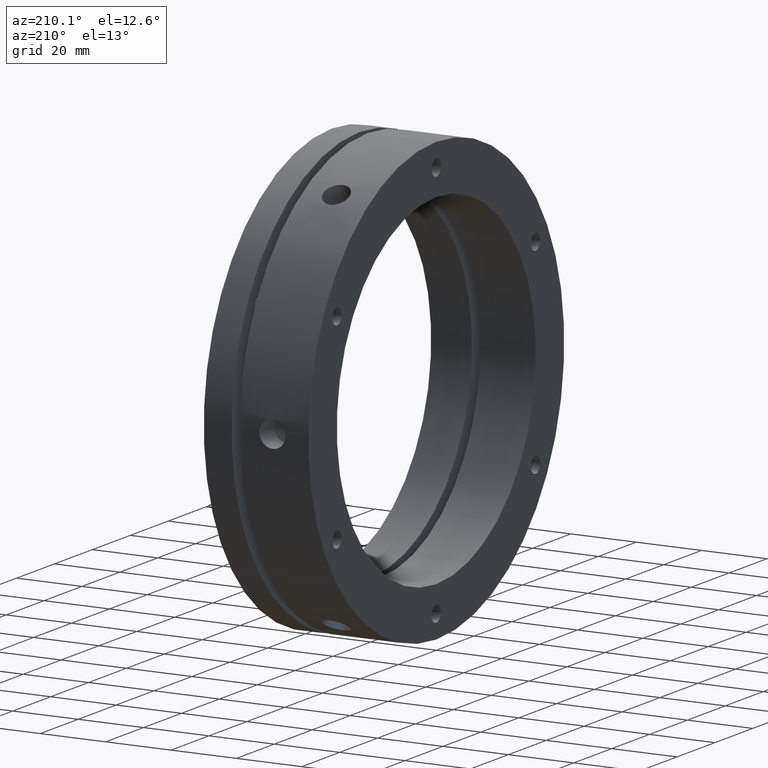
[diagram: clean part render]
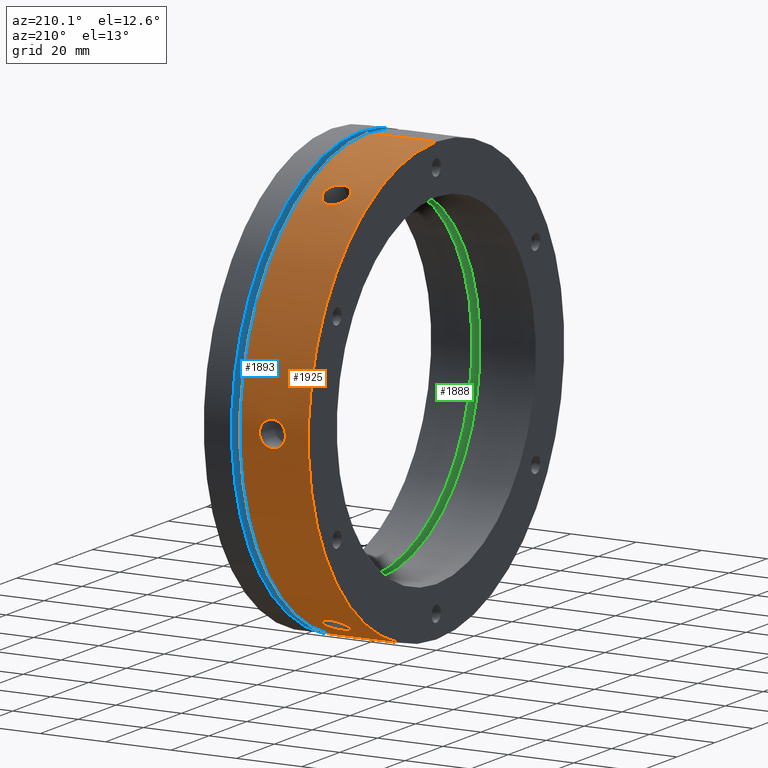
[diagram: same view with three faces highlighted in distinct colors, each labeled with its STEP entity id]
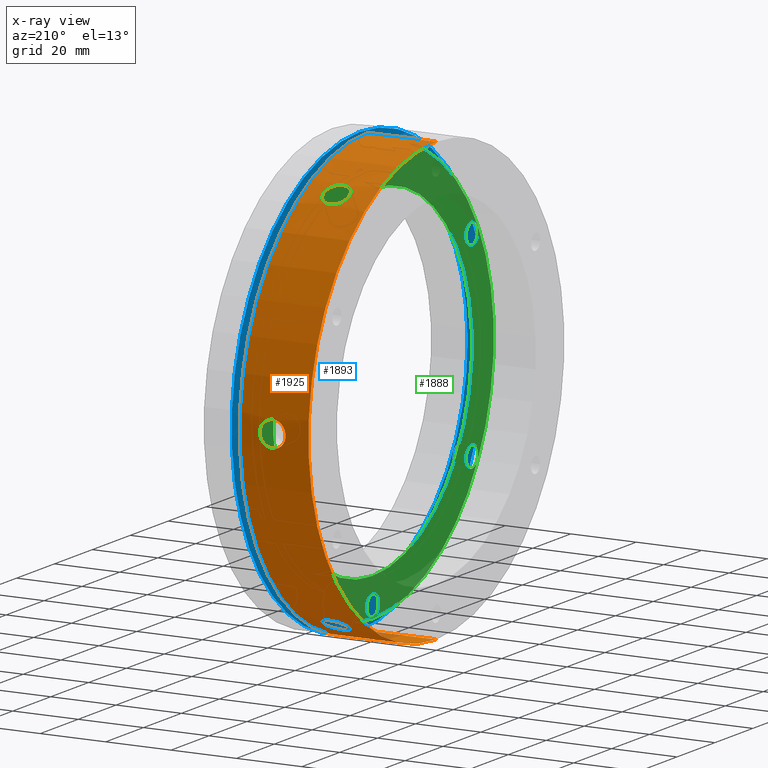
[diagram: x-ray of the same camera — body ghosted, the three highlighted faces saturated]
A machine part, auxiliary view with three faces highlighted in distinct colors.
The next image is the same camera in x-ray (body ghosted, the three faces saturated) — at least one of them is partly hidden behind the body in this view.
Their STEP definitions:

[orange] entity #1925 — the highlighted cylindrical surface (partial cylindrical patch) has radius 67.5 mm, axis along (1, 0, 0).
#71 = EDGE_LOOP ( 'NONE', ( #881, #877, #878, #907 ) ) ;
#146 = EDGE_LOOP ( 'NONE', ( #886, #890 ) ) ;
#170 = EDGE_LOOP ( 'NONE', ( #883, #882 ) ) ;
#171 = EDGE_LOOP ( 'NONE', ( #885, #884 ) ) ;
#394 = VECTOR ( 'NONE', #3730, 1000.000000000000000 ) ;
#398 = LINE ( 'NONE', #3724, #394 ) ;
#436 = CIRCLE ( 'NONE', #530, 67.50000000000000000 ) ;
#438 = CIRCLE ( 'NONE', #529, 67.50000000000000000 ) ;
#440 = VECTOR ( 'NONE', #3423, 1000.000000000000000 ) ;
#445 = LINE ( 'NONE', #3386, #440 ) ;
#529 = AXIS2_PLACEMENT_3D ( 'NONE', #3640, #3641, #3642 ) ;
#530 = AXIS2_PLACEMENT_3D ( 'NONE', #3636, #3637, #3638 ) ;
#598 = AXIS2_PLACEMENT_3D ( 'NONE', #3023, #3024, #3022 ) ;
#877 = ORIENTED_EDGE ( 'NONE', *, *, #4347, .T. ) ;
#878 = ORIENTED_EDGE ( 'NONE', *, *, #4282, .T. ) ;
#881 = ORIENTED_EDGE ( 'NONE', *, *, #4283, .T. ) ;
#882 = ORIENTED_EDGE ( 'NONE', *, *, #4280, .T. ) ;
#883 = ORIENTED_EDGE ( 'NONE', *, *, #4279, .T. ) ;
#884 = ORIENTED_EDGE ( 'NONE', *, *, #4277, .T. ) ;
#885 = ORIENTED_EDGE ( 'NONE', *, *, #4273, .T. ) ;
#886 = ORIENTED_EDGE ( 'NONE', *, *, #4274, .T. ) ;
#890 = ORIENTED_EDGE ( 'NONE', *, *, #4276, .T. ) ;
#907 = ORIENTED_EDGE ( 'NONE', *, *, #4272, .F. ) ;
#975 = CYLINDRICAL_SURFACE ( 'NONE', #598, 67.50000000000000000 ) ;
#979 = FACE_BOUND ( 'NONE', #171, .T. ) ;
#983 = FACE_BOUND ( 'NONE', #170, .T. ) ;
#985 = FACE_OUTER_BOUND ( 'NONE', #71, .T. ) ;
#987 = FACE_BOUND ( 'NONE', #146, .T. ) ;
#1925 = ADVANCED_FACE ( 'NONE', ( #987, #979, #983, #985 ), #975, .T. ) ;
#2111 = VERTEX_POINT ( 'NONE', #3281 ) ;
#2112 = VERTEX_POINT ( 'NONE', #3282 ) ;
#2113 = VERTEX_POINT ( 'NONE', #3283 ) ;
#2114 = VERTEX_POINT ( 'NONE', #3284 ) ;
#2117 = VERTEX_POINT ( 'NONE', #3287 ) ;
#2121 = VERTEX_POINT ( 'NONE', #3291 ) ;
#2122 = VERTEX_POINT ( 'NONE', #3292 ) ;
#2125 = VERTEX_POINT ( 'NONE', #3295 ) ;
#2126 = VERTEX_POINT ( 'NONE', #3296 ) ;
#2127 = VERTEX_POINT ( 'NONE', #3297 ) ;
#3022 = DIRECTION ( 'NONE',  ( 0.0000000000000000000, 0.0000000000000000000, -1.000000000000000000 ) ) ;
#3023 = CARTESIAN_POINT ( 'NONE',  ( 15.99999999999998200, 0.0000000000000000000, 0.0000000000000000000 ) ) ;
#3024 = DIRECTION ( 'NONE',  ( 1.000000000000000000, 0.0000000000000000000, 0.0000000000000000000 ) ) ;
#3281 = CARTESIAN_POINT ( 'NONE',  ( 10.99999999999998600, 67.38137724920737500, 3.999999999999966200 ) ) ;
#3282 = CARTESIAN_POINT ( 'NONE',  ( 10.99999999999998600, 30.22658700946598700, 60.35398443979637100 ) ) ;
#3283 = CARTESIAN_POINT ( 'NONE',  ( 10.99999999999998600, 30.22658700946592700, -60.35398443979640600 ) ) ;
#3284 = CARTESIAN_POINT ( 'NONE',  ( -1.734723475976807100E-014, 8.266365894244635100E-015, 67.50000000000000000 ) ) ;
#3287 = CARTESIAN_POINT ( 'NONE',  ( 10.99999999999998600, 37.15479023974149400, 56.35398443979637100 ) ) ;
#3291 = CARTESIAN_POINT ( 'NONE',  ( 20.99999999999998600, 8.266365894244635100E-015, 67.50000000000000000 ) ) ;
#3292 = CARTESIAN_POINT ( 'NONE',  ( -1.734723475976807100E-014, 0.0000000000000000000, -67.50000000000000000 ) ) ;
#3295 = CARTESIAN_POINT ( 'NONE',  ( 10.99999999999998600, 67.38137724920737500, -4.000000000000033800 ) ) ;
#3296 = CARTESIAN_POINT ( 'NONE',  ( 10.99999999999998600, 37.15479023974143800, -56.35398443979640600 ) ) ;
#3297 = CARTESIAN_POINT ( 'NONE',  ( 20.99999999999998600, 0.0000000000000000000, -67.50000000000000000 ) ) ;
#3386 = CARTESIAN_POINT ( 'NONE',  ( 15.99999999999998200, 0.0000000000000000000, -67.50000000000000000 ) ) ;
#3387 = CARTESIAN_POINT ( 'NONE',  ( 10.73909229457169400, 67.38137724920738900, 3.999999999999966200 ) ) ;
#3421 = CARTESIAN_POINT ( 'NONE',  ( 10.99999999999998600, 67.38137724920737500, 3.999999999999966200 ) ) ;
#3423 = DIRECTION ( 'NONE',  ( 1.000000000000000000, 0.0000000000000000000, 0.0000000000000000000 ) ) ;
#3424 = CARTESIAN_POINT ( 'NONE',  ( 10.99999999999998600, 30.22658700946598700, 60.35398443979637100 ) ) ;
#3425 = CARTESIAN_POINT ( 'NONE',  ( 10.73909229457169800, 30.22658700946598700, 60.35398443979635600 ) ) ;
#3426 = CARTESIAN_POINT ( 'NONE',  ( 10.47408763467156900, 67.38294160032730000, 3.973890608714768700 ) ) ;
#3427 = CARTESIAN_POINT ( 'NONE',  ( 9.961158909440492000, 67.38889690229801500, 3.871588766204637500 ) ) ;
#3428 = CARTESIAN_POINT ( 'NONE',  ( 9.711849904074711000, 67.39325442428891200, 3.795963450220702000 ) ) ;
#3429 = CARTESIAN_POINT ( 'NONE',  ( 9.227622722682753000, 67.40424862306866800, 3.595462136067257400 ) ) ;
#3430 = CARTESIAN_POINT ( 'NONE',  ( 8.993526050400470600, 67.41089719912022800, 3.470153257375494500 ) ) ;
#3431 = CARTESIAN_POINT ( 'NONE',  ( 8.560270715125977100, 67.42518374067218200, 3.180506619490580900 ) ) ;
#3432 = CARTESIAN_POINT ( 'NONE',  ( 8.358320997279003400, 67.43288274413102100, 3.015167897203681100 ) ) ;
#3433 = CARTESIAN_POINT ( 'NONE',  ( 7.984936087301689700, 67.44854199779236100, 2.641797684170584600 ) ) ;
#3434 = CARTESIAN_POINT ( 'NONE',  ( 7.819337065288731700, 67.45625031883604100, 2.439518780513361600 ) ) ;
#3435 = CARTESIAN_POINT ( 'NONE',  ( 7.529781849465389400, 67.47052322596526600, 2.006353551202695800 ) ) ;
#3436 = CARTESIAN_POINT ( 'NONE',  ( 7.404617164997526800, 67.47715718081893500, 1.772570174284353400 ) ) ;
#3437 = CARTESIAN_POINT ( 'NONE',  ( 7.203951095060021200, 67.48814674269408400, 1.287942337333826100 ) ) ;
#3438 = CARTESIAN_POINT ( 'NONE',  ( 7.128361585335436100, 67.49249573465600300, 1.038608952718347100 ) ) ;
#3439 = CARTESIAN_POINT ( 'NONE',  ( 7.026139370803330000, 67.49843675803855100, 0.5260458823084767100 ) ) ;
#3440 = CARTESIAN_POINT ( 'NONE',  ( 6.999817124770880000, 67.50001083704796700, 0.2614818767404899500 ) ) ;
#3441 = CARTESIAN_POINT ( 'NONE',  ( 7.000184811102107200, 67.49998904823363000, -0.2670473025547517300 ) ) ;
#3442 = CARTESIAN_POINT ( 'NONE',  ( 7.026296595522172300, 67.49842759757579800, -0.5268857423858892600 ) ) ;
#3443 = CARTESIAN_POINT ( 'NONE',  ( 7.128264857095052400, 67.49250137915491600, -1.038072403776859200 ) ) ;
#3444 = CARTESIAN_POINT ( 'NONE',  ( 7.205366418610821300, 67.48806684514470100, -1.292079044559702800 ) ) ;
#3445 = CARTESIAN_POINT ( 'NONE',  ( 7.406441644998079000, 67.47705968793036400, -1.776246217052325000 ) ) ;
#3446 = CARTESIAN_POINT ( 'NONE',  ( 7.529438794384555300, 67.47053982423437900, -2.005871059801243900 ) ) ;
#3447 = CARTESIAN_POINT ( 'NONE',  ( 7.819970561549346200, 67.45621940430021400, -2.440435731802487000 ) ) ;
#3448 = CARTESIAN_POINT ( 'NONE',  ( 7.988993962148477100, 67.44836654208235400, -2.646107071953381700 ) ) ;
#3449 = CARTESIAN_POINT ( 'NONE',  ( 8.358144355942117800, 67.43289548194675800, -3.014736929182972900 ) ) ;
#3450 = CARTESIAN_POINT ( 'NONE',  ( 8.559564572804662300, 67.42520262882158000, -3.180163607477076000 ) ) ;
#3451 = CARTESIAN_POINT ( 'NONE',  ( 8.996954457991627400, 67.41078857205795300, -3.472315394844208900 ) ) ;
#3452 = CARTESIAN_POINT ( 'NONE',  ( 9.229707056351230700, 67.40419898787722300, -3.596374580006923800 ) ) ;
#3453 = CARTESIAN_POINT ( 'NONE',  ( 9.711062411282046700, 67.39327462142370000, -3.795587848863802600 ) ) ;
#3454 = CARTESIAN_POINT ( 'NONE',  ( 9.963221900934723200, 67.38885865987285200, -3.872255431270580600 ) ) ;
#3455 = CARTESIAN_POINT ( 'NONE',  ( 10.47954057883765200, 67.38289278936227300, -3.974719228150493900 ) ) ;
#3456 = CARTESIAN_POINT ( 'NONE',  ( 10.73909206295764600, 67.38137724920737500, -4.000000000000033800 ) ) ;
#3457 = CARTESIAN_POINT ( 'NONE',  ( 10.99999999999998600, 67.38137724920737500, -4.000000000000033800 ) ) ;
#3458 = CARTESIAN_POINT ( 'NONE',  ( 10.99999999999998600, 67.38137724920737500, -4.000000000000033800 ) ) ;
#3459 = CARTESIAN_POINT ( 'NONE',  ( 10.47408763467156900, 30.24998058115628700, 60.34228451196407400 ) ) ;
#3460 = CARTESIAN_POINT ( 'NONE',  ( 9.961158909440492000, 30.34155422660935400, 60.29629103350281100 ) ) ;
#3461 = CARTESIAN_POINT ( 'NONE',  ( 9.711849904074714600, 30.40922643241612600, 60.26225210025253900 ) ) ;
#3462 = CARTESIAN_POINT ( 'NONE',  ( 9.227622722682756500, 30.58836276335505400, 60.17152269861334400 ) ) ;
#3463 = CARTESIAN_POINT ( 'NONE',  ( 8.993526050400472400, 30.70020772364763300, 60.11462609502711300 ) ) ;
#3464 = CARTESIAN_POINT ( 'NONE',  ( 8.560270715125978900, 30.95819234095270600, 59.98217528400087400 ) ) ;
#3465 = CARTESIAN_POINT ( 'NONE',  ( 8.358320997279010500, 31.10522937641184900, 59.90617345543661500 ) ) ;
#3466 = CARTESIAN_POINT ( 'NONE',  ( 7.984936087301696800, 31.43640709274559000, 59.73304966039510300 ) ) ;
#3467 = CARTESIAN_POINT ( 'NONE',  ( 7.819337065288735300, 31.61543992248423200, 59.63858581041080200 ) ) ;
#3468 = CARTESIAN_POINT ( 'NONE',  ( 7.529781849465392100, 31.99770846866798700, 59.43436389591522600 ) ) ;
#3469 = CARTESIAN_POINT ( 'NONE',  ( 7.404617164997531200, 32.20348778948862600, 59.32321738088692300 ) ) ;
#3470 = CARTESIAN_POINT ( 'NONE',  ( 7.203951095060025600, 32.62868258860645900, 59.09042070217198300 ) ) ;
#3471 = CARTESIAN_POINT ( 'NONE',  ( 7.128361585335441400, 32.84678612967598400, 58.96952034738414000 ) ) ;
#3472 = CARTESIAN_POINT ( 'NONE',  ( 7.026139370803330800, 33.29364928138397100, 58.71838388935297100 ) ) ;
#3473 = CARTESIAN_POINT ( 'NONE',  ( 6.999817124770880000, 33.52355547063752500, 58.58746507897872400 ) ) ;
#3474 = CARTESIAN_POINT ( 'NONE',  ( 7.000184811102104600, 33.98126427214135200, 58.32318161966432500 ) ) ;
#3475 = CARTESIAN_POINT ( 'NONE',  ( 7.026296595522173200, 34.20551023658593000, 58.19191014381234300 ) ) ;
#3476 = CARTESIAN_POINT ( 'NONE',  ( 7.128264857095049800, 34.64524776221581000, 57.93118455741599600 ) ) ;
#3477 = CARTESIAN_POINT ( 'NONE',  ( 7.205366418610816800, 34.86300669885861200, 57.80034081791776400 ) ) ;
#3478 = CARTESIAN_POINT ( 'NONE',  ( 7.406441644998072800, 35.27680419130852100, 57.54872475390038000 ) ) ;
#3479 = CARTESIAN_POINT ( 'NONE',  ( 7.529438794384551800, 35.47240520662109700, 57.42826596493599600 ) ) ;
#3480 = CARTESIAN_POINT ( 'NONE',  ( 7.819970561549340900, 35.84158904219434300, 57.19858178147952500 ) ) ;
#3481 = CARTESIAN_POINT ( 'NONE',  ( 7.988993962148471800, 36.01577921648650000, 57.08894533323099600 ) ) ;
#3482 = CARTESIAN_POINT ( 'NONE',  ( 8.358144355942116000, 36.32728650737295300, 56.89123207351529000 ) ) ;
#3483 = CARTESIAN_POINT ( 'NONE',  ( 8.559564572804662300, 36.46670378667673900, 56.80185652813428700 ) ) ;
#3484 = CARTESIAN_POINT ( 'NONE',  ( 8.996954457991622100, 36.71250762791588300, 56.64329769512180900 ) ) ;
#3485 = CARTESIAN_POINT ( 'NONE',  ( 9.229707056351228900, 36.81665124174922700, 56.57556135523955000 ) ) ;
#3486 = CARTESIAN_POINT ( 'NONE',  ( 9.711062411282044900, 36.98371281012345000, 56.46649394194206900 ) ) ;
#3487 = CARTESIAN_POINT ( 'NONE',  ( 9.963221900934717800, 37.04790090335903600, 56.42433581585353900 ) ) ;
#3488 = CARTESIAN_POINT ( 'NONE',  ( 10.47954057883765300, 37.13365421916998300, 56.36793732199576100 ) ) ;
#3489 = CARTESIAN_POINT ( 'NONE',  ( 10.73909206295763900, 37.15479023974148700, 56.35398443979636300 ) ) ;
#3490 = CARTESIAN_POINT ( 'NONE',  ( 10.99999999999998600, 37.15479023974149400, 56.35398443979637100 ) ) ;
#3491 = CARTESIAN_POINT ( 'NONE',  ( 10.99999999999998600, 37.15479023974149400, 56.35398443979637100 ) ) ;
#3492 = CARTESIAN_POINT ( 'NONE',  ( 11.26090793714404400, 37.15479023974149400, 56.35398443979634200 ) ) ;
#3496 = CARTESIAN_POINT ( 'NONE',  ( 11.26090793714404500, 67.38137724920736100, -4.000000000000033800 ) ) ;
#3497 = CARTESIAN_POINT ( 'NONE',  ( 11.52591283369941300, 37.13296097991802500, 56.36839392918877700 ) ) ;
#3498 = CARTESIAN_POINT ( 'NONE',  ( 12.03884198880588800, 37.04734248682522900, 56.42470239138344100 ) ) ;
#3499 = CARTESIAN_POINT ( 'NONE',  ( 12.28815119685501100, 36.98402769301797800, 56.46628884609015800 ) ) ;
#3500 = CARTESIAN_POINT ( 'NONE',  ( 12.77237875668080100, 36.81588526259199100, 56.57606095142773500 ) ) ;
#3501 = CARTESIAN_POINT ( 'NONE',  ( 13.00647556770923300, 36.71068870388339900, 56.64447333832279000 ) ) ;
#3502 = CARTESIAN_POINT ( 'NONE',  ( 13.43973112978456700, 36.46699022342318800, 56.80166942030975700 ) ) ;
#3503 = CARTESIAN_POINT ( 'NONE',  ( 13.64168093604262200, 36.32765195872387700, 56.89100645899222300 ) ) ;
#3504 = CARTESIAN_POINT ( 'NONE',  ( 14.01506595867558900, 36.01213295144476200, 57.09125320956559300 ) ) ;
#3505 = CARTESIAN_POINT ( 'NONE',  ( 14.18066491964191100, 35.84080822387251400, 57.19906839238979800 ) ) ;
#3506 = CARTESIAN_POINT ( 'NONE',  ( 14.47022002297181600, 35.47281202744434800, 57.42801203213715400 ) ) ;
#3507 = CARTESIAN_POINT ( 'NONE',  ( 14.59538461607227200, 35.27366633602051800, 57.55064908047184200 ) ) ;
#3508 = CARTESIAN_POINT ( 'NONE',  ( 14.79605033172388500, 34.85946058789043200, 57.80248051675495400 ) ) ;
#3509 = CARTESIAN_POINT ( 'NONE',  ( 14.87163962980802600, 34.64570577319590700, 57.93091368766467000 ) ) ;
#3510 = CARTESIAN_POINT ( 'NONE',  ( 14.97386132053187400, 34.20478308506648800, 58.19234058975511900 ) ) ;
#3511 = CARTESIAN_POINT ( 'NONE',  ( 15.00018324290823600, 33.97645024547141900, 58.32598618397285200 ) ) ;
#3512 = CARTESIAN_POINT ( 'NONE',  ( 14.99981481338055800, 33.51872014920071800, 58.59023156786078300 ) ) ;
#3513 = CARTESIAN_POINT ( 'NONE',  ( 14.97370272124640600, 33.29291297360231300, 58.71879837258068600 ) ) ;
#3514 = CARTESIAN_POINT ( 'NONE',  ( 14.87173392605369700, 32.84724969982844600, 58.96925914190173000 ) ) ;
#3515 = CARTESIAN_POINT ( 'NONE',  ( 14.79463212785195500, 32.62505645474511300, 59.09242189915739400 ) ) ;
#3516 = CARTESIAN_POINT ( 'NONE',  ( 14.59355659696135600, 32.20025240318418700, 59.32497264857821800 ) ) ;
#3517 = CARTESIAN_POINT ( 'NONE',  ( 14.47055934273477000, 31.99813180232279200, 59.43413853932332800 ) ) ;
#3518 = CARTESIAN_POINT ( 'NONE',  ( 14.18002743435036500, 31.61462807295557900, 59.63901872565465800 ) ) ;
#3519 = CARTESIAN_POINT ( 'NONE',  ( 14.01100402945902700, 31.43258532228809800, 59.73505345840167300 ) ) ;
#3520 = CARTESIAN_POINT ( 'NONE',  ( 13.64185372173520200, 31.10560749621719600, 59.90596976940030100 ) ) ;
#3521 = CARTESIAN_POINT ( 'NONE',  ( 13.44043357950982200, 30.95849759625346200, 59.98202077808277700 ) ) ;
#3522 = CARTESIAN_POINT ( 'NONE',  ( 13.00304389669707000, 30.69828011193407800, 60.11561351436761000 ) ) ;
#3523 = CARTESIAN_POINT ( 'NONE',  ( 12.77029148319261300, 30.58754711918444600, 60.17193625365906200 ) ) ;
#3524 = CARTESIAN_POINT ( 'NONE',  ( 12.28893648643766100, 30.40956149064716700, 60.26208195232958100 ) ) ;
#3525 = CARTESIAN_POINT ( 'NONE',  ( 12.03677718526620500, 30.34095755216775500, 60.29659134987169700 ) ) ;
#3526 = CARTESIAN_POINT ( 'NONE',  ( 11.52045896052088700, 30.24923853038219300, 60.34265657002441000 ) ) ;
#3527 = CARTESIAN_POINT ( 'NONE',  ( 11.26090770552999500, 30.22658700946598700, 60.35398443979639200 ) ) ;
#3528 = CARTESIAN_POINT ( 'NONE',  ( 10.99999999999998600, 30.22658700946598700, 60.35398443979637100 ) ) ;
#3529 = CARTESIAN_POINT ( 'NONE',  ( 10.99999999999998600, 30.22658700946592700, -60.35398443979640600 ) ) ;
#3530 = CARTESIAN_POINT ( 'NONE',  ( 10.73909229457170000, 37.15479023974143800, -56.35398443979639900 ) ) ;
#3531 = CARTESIAN_POINT ( 'NONE',  ( 11.52591283369941200, 67.38294160316502300, -3.973890561750901700 ) ) ;
#3532 = CARTESIAN_POINT ( 'NONE',  ( 12.03884198880588800, 67.38889691532723700, -3.871588540601444100 ) ) ;
#3533 = CARTESIAN_POINT ( 'NONE',  ( 12.28815119685501000, 67.39325444465296800, -3.795963093375649400 ) ) ;
#3534 = CARTESIAN_POINT ( 'NONE',  ( 12.77237875668080100, 67.40424866128921600, -3.595461424503900300 ) ) ;
#3535 = CARTESIAN_POINT ( 'NONE',  ( 13.00647556770923300, 67.41089724691957500, -3.470152338824028100 ) ) ;
#3536 = CARTESIAN_POINT ( 'NONE',  ( 13.43973112978456900, 67.42518380706556500, -3.180505222888343500 ) ) ;
#3537 = CARTESIAN_POINT ( 'NONE',  ( 13.64168093604261900, 67.43288281971376800, -3.015166226598257300 ) ) ;
#3538 = CARTESIAN_POINT ( 'NONE',  ( 14.01506595867558900, 67.44854208909605100, -2.641795375631014400 ) ) ;
#3539 = CARTESIAN_POINT ( 'NONE',  ( 14.18066491964190900, 67.45625041254935200, -2.439516217844899200 ) ) ;
#3540 = CARTESIAN_POINT ( 'NONE',  ( 14.47022002297181100, 67.47052332239138700, -2.006350343368377100 ) ) ;
#3541 = CARTESIAN_POINT ( 'NONE',  ( 14.59538461607226800, 67.47715727598243500, -1.772566591373778900 ) ) ;
#3542 = CARTESIAN_POINT ( 'NONE',  ( 14.79605033172388500, 67.48814682321005900, -1.287938172958043900 ) ) ;
#3543 = CARTESIAN_POINT ( 'NONE',  ( 14.87163962980802600, 67.49249580455918400, -1.038604487796483500 ) ) ;
#3544 = CARTESIAN_POINT ( 'NONE',  ( 14.97386132053187100, 67.49843679893750400, -0.5260407877262635000 ) ) ;
#3545 = CARTESIAN_POINT ( 'NONE',  ( 15.00018324290823600, 67.50001085883636200, -0.2614759510098274000 ) ) ;
#3546 = CARTESIAN_POINT ( 'NONE',  ( 14.99981481338055800, 67.49998902598076700, 0.2670526323812574800 ) ) ;
#3547 = CARTESIAN_POINT ( 'NONE',  ( 14.97370272124640600, 67.49842755715241100, 0.5268907851662484300 ) ) ;
#3548 = CARTESIAN_POINT ( 'NONE',  ( 14.87173392605369500, 67.49250130914883500, 1.038076886448680700 ) ) ;
#3549 = CARTESIAN_POINT ( 'NONE',  ( 14.79463212785195700, 67.48806676319074400, 1.292083259867973900 ) ) ;
#3550 = CARTESIAN_POINT ( 'NONE',  ( 14.59355659696135600, 67.47705959407780100, 1.776249734860718000 ) ) ;
#3551 = CARTESIAN_POINT ( 'NONE',  ( 14.47055934273477200, 67.47053972825912600, 2.005874255207397800 ) ) ;
#3552 = CARTESIAN_POINT ( 'NONE',  ( 14.18002743435036600, 67.45621930967055800, 2.440438320451153500 ) ) ;
#3553 = CARTESIAN_POINT ( 'NONE',  ( 14.01100402945903100, 67.44836645254140700, 2.646109333477507400 ) ) ;
#3554 = CARTESIAN_POINT ( 'NONE',  ( 13.64185372173520200, 67.43289540675186800, 3.014738592828426700 ) ) ;
#3555 = CARTESIAN_POINT ( 'NONE',  ( 13.44043357950982400, 67.42520256227244600, 3.180165007686437800 ) ) ;
#3556 = CARTESIAN_POINT ( 'NONE',  ( 13.00304389669707200, 67.41078852349647800, 3.472316327758318400 ) ) ;
#3557 = CARTESIAN_POINT ( 'NONE',  ( 12.77029148319261300, 67.40419895015880100, 3.596375282162312300 ) ) ;
#3558 = CARTESIAN_POINT ( 'NONE',  ( 12.28893648643766300, 67.39327460098073200, 3.795588207319399800 ) ) ;
#3559 = CARTESIAN_POINT ( 'NONE',  ( 12.03677718526620100, 67.38885864668178300, 3.872255659613281800 ) ) ;
#3560 = CARTESIAN_POINT ( 'NONE',  ( 11.52045896052088200, 67.38289278667218700, 3.974719272566193500 ) ) ;
#3561 = CARTESIAN_POINT ( 'NONE',  ( 11.26090770552999500, 67.38137724920736100, 3.999999999999967100 ) ) ;
#3562 = CARTESIAN_POINT ( 'NONE',  ( 10.99999999999998600, 67.38137724920737500, 3.999999999999966200 ) ) ;
#3564 = CARTESIAN_POINT ( 'NONE',  ( 10.99999999999998600, 37.15479023974143800, -56.35398443979640600 ) ) ;
#3566 = CARTESIAN_POINT ( 'NONE',  ( 11.26090793714404500, 30.22658700946592700, -60.35398443979639900 ) ) ;
#3567 = CARTESIAN_POINT ( 'NONE',  ( 10.47408763467157300, 37.13296101917107700, -56.36839390324930600 ) ) ;
#3568 = CARTESIAN_POINT ( 'NONE',  ( 9.961158909440495500, 37.04734267568868900, -56.42470226729820100 ) ) ;
#3569 = CARTESIAN_POINT ( 'NONE',  ( 9.711849904074711000, 36.98402799187283600, -56.46628865003184200 ) ) ;
#3570 = CARTESIAN_POINT ( 'NONE',  ( 9.227622722682754700, 36.81588585971366700, -56.57606056254610400 ) ) ;
#3571 = CARTESIAN_POINT ( 'NONE',  ( 8.993526050400472400, 36.71068947547263400, -56.64447283765162000 ) ) ;
#3572 = CARTESIAN_POINT ( 'NONE',  ( 8.560270715125977100, 36.46699139971953200, -56.80166866451030200 ) ) ;
#3573 = CARTESIAN_POINT ( 'NONE',  ( 8.358320997279006900, 36.32765336771923600, -56.89100555823292600 ) ) ;
#3574 = CARTESIAN_POINT ( 'NONE',  ( 7.984936087301691500, 36.01213490504684200, -57.09125197622452000 ) ) ;
#3575 = CARTESIAN_POINT ( 'NONE',  ( 7.819337065288733500, 35.84081039635184100, -57.19906702989742800 ) ) ;
#3576 = CARTESIAN_POINT ( 'NONE',  ( 7.529781849465386800, 35.47281475729730700, -57.42801034471254000 ) ) ;
#3577 = CARTESIAN_POINT ( 'NONE',  ( 7.404617164997530300, 35.27366939133035100, -57.55064720660254100 ) ) ;
#3578 = CARTESIAN_POINT ( 'NONE',  ( 7.203951095060025600, 34.85946415408767500, -57.80247836483814400 ) ) ;
#3579 = CARTESIAN_POINT ( 'NONE',  ( 7.128361585335437800, 34.64570960498007000, -57.93091139466579900 ) ) ;
#3580 = CARTESIAN_POINT ( 'NONE',  ( 7.026139370803330000, 34.20478747665465100, -58.19233800704449100 ) ) ;
#3581 = CARTESIAN_POINT ( 'NONE',  ( 6.999817124770880000, 33.97645536641051200, -58.32598320223822700 ) ) ;
#3582 = CARTESIAN_POINT ( 'NONE',  ( 7.000184811102105400, 33.51872477609230600, -58.59022892221906900 ) ) ;
#3583 = CARTESIAN_POINT ( 'NONE',  ( 7.026296595522172300, 33.29291736098993200, -58.71879588619820100 ) ) ;
#3584 = CARTESIAN_POINT ( 'NONE',  ( 7.128264857095056000, 32.84725361693915600, -58.96925696119284100 ) ) ;
#3585 = CARTESIAN_POINT ( 'NONE',  ( 7.205366418610818600, 32.62506014628614500, -59.09241986247746300 ) ) ;
#3586 = CARTESIAN_POINT ( 'NONE',  ( 7.406441644998075400, 32.20025549662188500, -59.32497097095269100 ) ) ;
#3587 = CARTESIAN_POINT ( 'NONE',  ( 7.529438794384552700, 31.99813461761332400, -59.43413702473723200 ) ) ;
#3588 = CARTESIAN_POINT ( 'NONE',  ( 7.819970561549344400, 31.61463036210591300, -59.63901751328200600 ) ) ;
#3589 = CARTESIAN_POINT ( 'NONE',  ( 7.988993962148473600, 31.43258732559592900, -59.73505240518436200 ) ) ;
#3590 = CARTESIAN_POINT ( 'NONE',  ( 8.358144355942116000, 31.10560897457386900, -59.90596900269827100 ) ) ;
#3591 = CARTESIAN_POINT ( 'NONE',  ( 8.559564572804665900, 30.95849884214492300, -59.98202013561136400 ) ) ;
#3592 = CARTESIAN_POINT ( 'NONE',  ( 8.996954457991625600, 30.69828094414213400, -60.11561308996602500 ) ) ;
#3593 = CARTESIAN_POINT ( 'NONE',  ( 9.229707056351232500, 30.58754774612804900, -60.17193593524646600 ) ) ;
#3594 = CARTESIAN_POINT ( 'NONE',  ( 9.711062411282048500, 30.40956181130026400, -60.26208179080586500 ) ) ;
#3595 = CARTESIAN_POINT ( 'NONE',  ( 9.963221900934719600, 30.34095775651384800, -60.29659124712411300 ) ) ;
#3596 = CARTESIAN_POINT ( 'NONE',  ( 10.47954057883765300, 30.24923857019236800, -60.34265655014625900 ) ) ;
#3597 = CARTESIAN_POINT ( 'NONE',  ( 10.73909206295764400, 30.22658700946593100, -60.35398443979641300 ) ) ;
#3598 = CARTESIAN_POINT ( 'NONE',  ( 10.99999999999998600, 30.22658700946592700, -60.35398443979640600 ) ) ;
#3600 = CARTESIAN_POINT ( 'NONE',  ( 11.52591283369941200, 30.24998062324704400, -60.34228449093968300 ) ) ;
#3601 = CARTESIAN_POINT ( 'NONE',  ( 12.03884198880588800, 30.34155442850207900, -60.29629093198488500 ) ) ;
#3602 = CARTESIAN_POINT ( 'NONE',  ( 12.28815119685501100, 30.40922675163503200, -60.26225193946581300 ) ) ;
#3603 = CARTESIAN_POINT ( 'NONE',  ( 12.77237875668080100, 30.58836339869727500, -60.17152237593163000 ) ) ;
#3604 = CARTESIAN_POINT ( 'NONE',  ( 13.00647556770923300, 30.70020854303621900, -60.11462567714681900 ) ) ;
#3605 = CARTESIAN_POINT ( 'NONE',  ( 13.43973112978456900, 30.95819358364240900, -59.98217464319808600 ) ) ;
#3606 = CARTESIAN_POINT ( 'NONE',  ( 13.64168093604262200, 31.10523086098995500, -59.90617268559046900 ) ) ;
#3607 = CARTESIAN_POINT ( 'NONE',  ( 14.01506595867558500, 31.43640913765133900, -59.73304858519659900 ) ) ;
#3608 = CARTESIAN_POINT ( 'NONE',  ( 14.18066491964190900, 31.61544218867688000, -59.63858461023469500 ) ) ;
#3609 = CARTESIAN_POINT ( 'NONE',  ( 14.47022002297181600, 31.99771129494706700, -59.43436237550554300 ) ) ;
#3610 = CARTESIAN_POINT ( 'NONE',  ( 14.59538461607226800, 32.20349093996196600, -59.32321567184563100 ) ) ;
#3611 = CARTESIAN_POINT ( 'NONE',  ( 14.79605033172389000, 32.62868623531968400, -59.09041868971299000 ) ) ;
#3612 = CARTESIAN_POINT ( 'NONE',  ( 14.87163962980802600, 32.84679003136334800, -58.96951817546114000 ) ) ;
#3613 = CARTESIAN_POINT ( 'NONE',  ( 14.97386132053187100, 33.29365371387105900, -58.71838137748136400 ) ) ;
#3614 = CARTESIAN_POINT ( 'NONE',  ( 15.00018324290823200, 33.52356061336501400, -58.58746213498268700 ) ) ;
#3615 = CARTESIAN_POINT ( 'NONE',  ( 14.99981481338055800, 33.98126887678008500, -58.32317893547953200 ) ) ;
#3616 = CARTESIAN_POINT ( 'NONE',  ( 14.97370272124640600, 34.20551458355013400, -58.19190758741443400 ) ) ;
#3617 = CARTESIAN_POINT ( 'NONE',  ( 14.87173392605369500, 34.64525160932046800, -57.93118225545304500 ) ) ;
#3618 = CARTESIAN_POINT ( 'NONE',  ( 14.79463212785195700, 34.86301030844568800, -57.80033863928942800 ) ) ;
#3619 = CARTESIAN_POINT ( 'NONE',  ( 14.59355659696136200, 35.27680719089368500, -57.54872291371749100 ) ) ;
#3620 = CARTESIAN_POINT ( 'NONE',  ( 14.47055934273477000, 35.47240792593640200, -57.42826428411591900 ) ) ;
#3621 = CARTESIAN_POINT ( 'NONE',  ( 14.18002743435036600, 35.84159123671504700, -57.19858040520351500 ) ) ;
#3622 = CARTESIAN_POINT ( 'NONE',  ( 14.01100402945903100, 36.01578113025335900, -57.08894412492419000 ) ) ;
#3623 = CARTESIAN_POINT ( 'NONE',  ( 13.64185372173521000, 36.32728791053472900, -56.89123117657188500 ) ) ;
#3624 = CARTESIAN_POINT ( 'NONE',  ( 13.44043357950982700, 36.46670496601903000, -56.80185577039633000 ) ) ;
#3625 = CARTESIAN_POINT ( 'NONE',  ( 13.00304389669707600, 36.71250841156247400, -56.64329718660927400 ) ) ;
#3626 = CARTESIAN_POINT ( 'NONE',  ( 12.77029148319261900, 36.81665183097442200, -56.57556097149676300 ) ) ;
#3627 = CARTESIAN_POINT ( 'NONE',  ( 12.28893648643766700, 36.98371311033363900, -56.46649374501019000 ) ) ;
#3628 = CARTESIAN_POINT ( 'NONE',  ( 12.03677718526620000, 37.04790109451409600, -56.42433569025841000 ) ) ;
#3629 = CARTESIAN_POINT ( 'NONE',  ( 11.52045896052088200, 37.13365425629004300, -56.36793729745820500 ) ) ;
#3630 = CARTESIAN_POINT ( 'NONE',  ( 11.26090770552999500, 37.15479023974144500, -56.35398443979641300 ) ) ;
#3631 = CARTESIAN_POINT ( 'NONE',  ( 10.99999999999998600, 37.15479023974143800, -56.35398443979640600 ) ) ;
#3636 = CARTESIAN_POINT ( 'NONE',  ( 20.99999999999998600, 0.0000000000000000000, 0.0000000000000000000 ) ) ;
#3637 = DIRECTION ( 'NONE',  ( -1.000000000000000000, -0.0000000000000000000, -0.0000000000000000000 ) ) ;
#3638 = DIRECTION ( 'NONE',  ( 0.0000000000000000000, 0.0000000000000000000, -1.000000000000000000 ) ) ;
#3640 = CARTESIAN_POINT ( 'NONE',  ( -1.734723475976807100E-014, 0.0000000000000000000, 0.0000000000000000000 ) ) ;
#3641 = DIRECTION ( 'NONE',  ( 1.000000000000000000, 0.0000000000000000000, 0.0000000000000000000 ) ) ;
#3642 = DIRECTION ( 'NONE',  ( 0.0000000000000000000, 0.0000000000000000000, -1.000000000000000000 ) ) ;
#3724 = CARTESIAN_POINT ( 'NONE',  ( 15.99999999999998200, 8.266365894244635100E-015, 67.50000000000000000 ) ) ;
#3730 = DIRECTION ( 'NONE',  ( 1.000000000000000000, 0.0000000000000000000, 0.0000000000000000000 ) ) ;
#4272 = EDGE_CURVE ( 'NONE', #2122, #2127, #445, .T. ) ;
#4273 = EDGE_CURVE ( 'NONE', #2111, #2125, #4754, .T. ) ;
#4274 = EDGE_CURVE ( 'NONE', #2112, #2117, #4749, .T. ) ;
#4276 = EDGE_CURVE ( 'NONE', #2117, #2112, #4741, .T. ) ;
#4277 = EDGE_CURVE ( 'NONE', #2125, #2111, #4753, .T. ) ;
#4279 = EDGE_CURVE ( 'NONE', #2126, #2113, #4742, .T. ) ;
#4280 = EDGE_CURVE ( 'NONE', #2113, #2126, #4747, .T. ) ;
#4282 = EDGE_CURVE ( 'NONE', #2121, #2127, #436, .T. ) ;
#4283 = EDGE_CURVE ( 'NONE', #2122, #2114, #438, .T. ) ;
#4347 = EDGE_CURVE ( 'NONE', #2114, #2121, #398, .T. ) ;
#4741 = B_SPLINE_CURVE_WITH_KNOTS ( 'NONE', 3,
 ( #3491, #3492, #3497, #3498, #3499, #3500, #3501, #3502, #3503, #3504, #3505, #3506, #3507, #3508, #3509, #3510, #3511, #3512, #3513, #3514, #3515, #3516, #3517, #3518, #3519, #3520, #3521, #3522, #3523, #3524, #3525, #3526, #3527, #3528 ),
 .UNSPECIFIED., .F., .F.,
 ( 4, 2, 2, 2, 2, 2, 2, 2, 2, 2, 2, 2, 2, 2, 2, 2, 4 ),
 ( 0.006255709293877673900, 0.007037330039340222500, 0.007818950784802771200, 0.008600571530265319100, 0.009382192275727868600, 0.01016381302119041800, 0.01094543376665296600, 0.01172705451211551400, 0.01250867525757806300, 0.01329029600304061300, 0.01407191674850316100, 0.01485353749396570900, 0.01563515823942825800, 0.01641677898489080800, 0.01719839973035335700, 0.01798002047581590300, 0.01876164122127845300 ),
 .UNSPECIFIED. ) ;
#4742 = B_SPLINE_CURVE_WITH_KNOTS ( 'NONE', 3,
 ( #3564, #3530, #3567, #3568, #3569, #3570, #3571, #3572, #3573, #3574, #3575, #3576, #3577, #3578, #3579, #3580, #3581, #3582, #3583, #3584, #3585, #3586, #3587, #3588, #3589, #3590, #3591, #3592, #3593, #3594, #3595, #3596, #3597, #3598 ),
 .UNSPECIFIED., .F., .F.,
 ( 4, 2, 2, 2, 2, 2, 2, 2, 2, 2, 2, 2, 2, 2, 2, 2, 4 ),
 ( 0.01876164122127843200, 0.01954326196643625700, 0.02032488271159408100, 0.02110650345675190600, 0.02188812420190973000, 0.02266974494706755500, 0.02345136569222538300, 0.02423298643738320400, 0.02501460718254103200, 0.02579622792769885300, 0.02657784867285668100, 0.02735946941801450200, 0.02814109016317233000, 0.02892271090833015500, 0.02970433165348797900, 0.03048595239864580400, 0.03126757314380362900 ),
 .UNSPECIFIED. ) ;
#4747 = B_SPLINE_CURVE_WITH_KNOTS ( 'NONE', 3,
 ( #3529, #3566, #3600, #3601, #3602, #3603, #3604, #3605, #3606, #3607, #3608, #3609, #3610, #3611, #3612, #3613, #3614, #3615, #3616, #3617, #3618, #3619, #3620, #3621, #3622, #3623, #3624, #3625, #3626, #3627, #3628, #3629, #3630, #3631 ),
 .UNSPECIFIED., .F., .F.,
 ( 4, 2, 2, 2, 2, 2, 2, 2, 2, 2, 2, 2, 2, 2, 2, 2, 4 ),
 ( 0.006255709293877661700, 0.007037330039340209500, 0.007818950784802757400, 0.008600571530265305200, 0.009382192275727854700, 0.01016381302119040300, 0.01094543376665295000, 0.01172705451211550000, 0.01250867525757804600, 0.01329029600304059600, 0.01407191674850314300, 0.01485353749396569100, 0.01563515823942823700, 0.01641677898489078700, 0.01719839973035333600, 0.01798002047581588600, 0.01876164122127843200 ),
 .UNSPECIFIED. ) ;
#4749 = B_SPLINE_CURVE_WITH_KNOTS ( 'NONE', 3,
 ( #3424, #3425, #3459, #3460, #3461, #3462, #3463, #3464, #3465, #3466, #3467, #3468, #3469, #3470, #3471, #3472, #3473, #3474, #3475, #3476, #3477, #3478, #3479, #3480, #3481, #3482, #3483, #3484, #3485, #3486, #3487, #3488, #3489, #3490 ),
 .UNSPECIFIED., .F., .F.,
 ( 4, 2, 2, 2, 2, 2, 2, 2, 2, 2, 2, 2, 2, 2, 2, 2, 4 ),
 ( 0.01876164122127845300, 0.01954326196643627700, 0.02032488271159410200, 0.02110650345675192700, 0.02188812420190975500, 0.02266974494706757900, 0.02345136569222540400, 0.02423298643738322800, 0.02501460718254105300, 0.02579622792769888100, 0.02657784867285670600, 0.02735946941801453000, 0.02814109016317235500, 0.02892271090833017900, 0.02970433165348800700, 0.03048595239864583200, 0.03126757314380365600 ),
 .UNSPECIFIED. ) ;
#4753 = B_SPLINE_CURVE_WITH_KNOTS ( 'NONE', 3,
 ( #3458, #3496, #3531, #3532, #3533, #3534, #3535, #3536, #3537, #3538, #3539, #3540, #3541, #3542, #3543, #3544, #3545, #3546, #3547, #3548, #3549, #3550, #3551, #3552, #3553, #3554, #3555, #3556, #3557, #3558, #3559, #3560, #3561, #3562 ),
 .UNSPECIFIED., .F., .F.,
 ( 4, 2, 2, 2, 2, 2, 2, 2, 2, 2, 2, 2, 2, 2, 2, 2, 4 ),
 ( 0.006255709293877660800, 0.007037330039340208700, 0.007818950784802755600, 0.008600571530265305200, 0.009382192275727851300, 0.01016381302119040100, 0.01094543376665294700, 0.01172705451211549600, 0.01250867525757804300, 0.01329029600304059200, 0.01407191674850313800, 0.01485353749396568800, 0.01563515823942823400, 0.01641677898489078300, 0.01719839973035333000, 0.01798002047581587900, 0.01876164122127842500 ),
 .UNSPECIFIED. ) ;
#4754 = B_SPLINE_CURVE_WITH_KNOTS ( 'NONE', 3,
 ( #3421, #3387, #3426, #3427, #3428, #3429, #3430, #3431, #3432, #3433, #3434, #3435, #3436, #3437, #3438, #3439, #3440, #3441, #3442, #3443, #3444, #3445, #3446, #3447, #3448, #3449, #3450, #3451, #3452, #3453, #3454, #3455, #3456, #3457 ),
 .UNSPECIFIED., .F., .F.,
 ( 4, 2, 2, 2, 2, 2, 2, 2, 2, 2, 2, 2, 2, 2, 2, 2, 4 ),
 ( 0.01876164122127842500, 0.01954326196643625000, 0.02032488271159407800, 0.02110650345675190200, 0.02188812420190972700, 0.02266974494706755500, 0.02345136569222538000, 0.02423298643738320400, 0.02501460718254103200, 0.02579622792769885700, 0.02657784867285668100, 0.02735946941801450900, 0.02814109016317233000, 0.02892271090833015100, 0.02970433165348797600, 0.03048595239864580100, 0.03126757314380362200 ),
 .UNSPECIFIED. ) ;

[blue] entity #1893 — the highlighted planar face has unit normal (1, 0, 0).
#302 = CIRCLE ( 'NONE', #484, 3.249999999999999600 ) ;
#303 = CIRCLE ( 'NONE', #485, 3.249999999999999600 ) ;
#312 = CIRCLE ( 'NONE', #488, 3.250000000000002700 ) ;
#330 = CIRCLE ( 'NONE', #494, 3.250000000000002700 ) ;
#353 = CIRCLE ( 'NONE', #502, 3.249999999999999600 ) ;
#470 = AXIS2_PLACEMENT_3D ( 'NONE', #4009, #4010, #4011 ) ;
#482 = AXIS2_PLACEMENT_3D ( 'NONE', #3943, #3944, #3945 ) ;
#484 = AXIS2_PLACEMENT_3D ( 'NONE', #3933, #3934, #3935 ) ;
#485 = AXIS2_PLACEMENT_3D ( 'NONE', #3929, #3930, #3931 ) ;
#488 = AXIS2_PLACEMENT_3D ( 'NONE', #3915, #3916, #3917 ) ;
#494 = AXIS2_PLACEMENT_3D ( 'NONE', #3886, #3887, #3888 ) ;
#502 = AXIS2_PLACEMENT_3D ( 'NONE', #3848, #3849, #3850 ) ;
#519 = AXIS2_PLACEMENT_3D ( 'NONE', #3739, #3740, #3741 ) ;
#550 = EDGE_CURVE ( 'NONE', #2068, #2062, #1252, .T. ) ;
#637 = EDGE_CURVE ( 'NONE', #2006, #2009, #1170, .T. ) ;
#640 = EDGE_CURVE ( 'NONE', #2032, #2033, #1167, .T. ) ;
#642 = EDGE_CURVE ( 'NONE', #2014, #2017, #1163, .T. ) ;
#644 = EDGE_CURVE ( 'NONE', #2010, #2013, #1157, .T. ) ;
#753 = AXIS2_PLACEMENT_3D ( 'NONE', #2942, #2940, #2945 ) ;
#1016 = EDGE_CURVE ( 'NONE', #2026, #2029, #4486, .T. ) ;
#1024 = EDGE_CURVE ( 'NONE', #2022, #2025, #4479, .T. ) ;
#1032 = EDGE_CURVE ( 'NONE', #2018, #2021, #4471, .T. ) ;
#1157 = CIRCLE ( 'NONE', #2746, 3.249999999999999600 ) ;
#1163 = CIRCLE ( 'NONE', #2747, 3.249999999999999600 ) ;
#1167 = CIRCLE ( 'NONE', #2748, 3.250000000000002700 ) ;
#1170 = CIRCLE ( 'NONE', #2696, 67.50000000000000000 ) ;
#1252 = CIRCLE ( 'NONE', #4345, 57.00000000000000000 ) ;
#1307 = CARTESIAN_POINT ( 'NONE',  ( 23.49999999999998600, 0.0000000000000000000, 0.0000000000000000000 ) ) ;
#1308 = DIRECTION ( 'NONE',  ( -1.000000000000000000, 0.0000000000000000000, 0.0000000000000000000 ) ) ;
#1309 = DIRECTION ( 'NONE',  ( 0.0000000000000000000, 0.0000000000000000000, 1.000000000000000000 ) ) ;
#1491 = CARTESIAN_POINT ( 'NONE',  ( 23.49999999999998600, 0.0000000000000000000, 0.0000000000000000000 ) ) ;
#1492 = DIRECTION ( 'NONE',  ( 1.000000000000000000, 0.0000000000000000000, 0.0000000000000000000 ) ) ;
#1493 = DIRECTION ( 'NONE',  ( 0.0000000000000000000, 0.0000000000000000000, -1.000000000000000000 ) ) ;
#1501 = CARTESIAN_POINT ( 'NONE',  ( 23.49999999999998600, 0.0000000000000000000, 60.50000000000003600 ) ) ;
#1502 = DIRECTION ( 'NONE',  ( -1.000000000000000000, -0.0000000000000000000, -0.0000000000000000000 ) ) ;
#1503 = DIRECTION ( 'NONE',  ( 0.0000000000000000000, 0.0000000000000000000, -1.000000000000000000 ) ) ;
#1506 = CARTESIAN_POINT ( 'NONE',  ( 23.49999999999998600, 52.39453692895854400, -30.25000000000004300 ) ) ;
#1507 = DIRECTION ( 'NONE',  ( -1.000000000000000000, -0.0000000000000000000, -0.0000000000000000000 ) ) ;
#1508 = DIRECTION ( 'NONE',  ( 0.0000000000000000000, 0.0000000000000000000, -1.000000000000000000 ) ) ;
#1510 = CARTESIAN_POINT ( 'NONE',  ( 23.49999999999998600, 52.39453692895858700, 30.24999999999997900 ) ) ;
#1511 = DIRECTION ( 'NONE',  ( -1.000000000000000000, -0.0000000000000000000, -0.0000000000000000000 ) ) ;
#1512 = DIRECTION ( 'NONE',  ( 0.0000000000000000000, 0.0000000000000000000, -1.000000000000000000 ) ) ;
#1688 = CARTESIAN_POINT ( 'NONE',  ( 23.49999999999998600, -52.39453692895855900, 30.25000000000002500 ) ) ;
#1689 = DIRECTION ( 'NONE',  ( -1.000000000000000000, -0.0000000000000000000, -0.0000000000000000000 ) ) ;
#1690 = DIRECTION ( 'NONE',  ( 0.0000000000000000000, 0.0000000000000000000, -1.000000000000000000 ) ) ;
#1745 = CARTESIAN_POINT ( 'NONE',  ( 23.49999999999998600, -52.39453692895857300, -30.25000000000000000 ) ) ;
#1746 = DIRECTION ( 'NONE',  ( -1.000000000000000000, -0.0000000000000000000, -0.0000000000000000000 ) ) ;
#1747 = DIRECTION ( 'NONE',  ( 0.0000000000000000000, 0.0000000000000000000, -1.000000000000000000 ) ) ;
#1771 = CARTESIAN_POINT ( 'NONE',  ( 23.49999999999998600, -8.881783999999999800E-015, -60.50000000000004300 ) ) ;
#1772 = DIRECTION ( 'NONE',  ( -1.000000000000000000, -0.0000000000000000000, -0.0000000000000000000 ) ) ;
#1773 = DIRECTION ( 'NONE',  ( 0.0000000000000000000, 0.0000000000000000000, -1.000000000000000000 ) ) ;
#1893 = ADVANCED_FACE ( 'NONE', ( #4227, #4220, #4224, #4226, #4222, #4219, #4218, #4217 ), #2943, .F. ) ;
#2006 = VERTEX_POINT ( 'NONE', #3176 ) ;
#2009 = VERTEX_POINT ( 'NONE', #3179 ) ;
#2010 = VERTEX_POINT ( 'NONE', #3180 ) ;
#2013 = VERTEX_POINT ( 'NONE', #3183 ) ;
#2014 = VERTEX_POINT ( 'NONE', #3184 ) ;
#2017 = VERTEX_POINT ( 'NONE', #3187 ) ;
#2018 = VERTEX_POINT ( 'NONE', #3188 ) ;
#2021 = VERTEX_POINT ( 'NONE', #3191 ) ;
#2022 = VERTEX_POINT ( 'NONE', #3192 ) ;
#2025 = VERTEX_POINT ( 'NONE', #3195 ) ;
#2026 = VERTEX_POINT ( 'NONE', #3196 ) ;
#2029 = VERTEX_POINT ( 'NONE', #3199 ) ;
#2032 = VERTEX_POINT ( 'NONE', #3202 ) ;
#2033 = VERTEX_POINT ( 'NONE', #3203 ) ;
#2062 = VERTEX_POINT ( 'NONE', #3232 ) ;
#2068 = VERTEX_POINT ( 'NONE', #3238 ) ;
#2197 = EDGE_LOOP ( 'NONE', ( #2371, #2370 ) ) ;
#2198 = EDGE_LOOP ( 'NONE', ( #2373, #2372 ) ) ;
#2199 = EDGE_LOOP ( 'NONE', ( #2382, #2380 ) ) ;
#2201 = EDGE_LOOP ( 'NONE', ( #2379, #2378 ) ) ;
#2202 = EDGE_LOOP ( 'NONE', ( #2386, #2385 ) ) ;
#2203 = EDGE_LOOP ( 'NONE', ( #2375, #2374 ) ) ;
#2204 = EDGE_LOOP ( 'NONE', ( #2377, #2376 ) ) ;
#2205 = EDGE_LOOP ( 'NONE', ( #2384, #2383 ) ) ;
#2284 = CIRCLE ( 'NONE', #519, 57.00000000000000000 ) ;
#2370 = ORIENTED_EDGE ( 'NONE', *, *, #637, .F. ) ;
#2371 = ORIENTED_EDGE ( 'NONE', *, *, #4601, .F. ) ;
#2372 = ORIENTED_EDGE ( 'NONE', *, *, #644, .F. ) ;
#2373 = ORIENTED_EDGE ( 'NONE', *, *, #4597, .F. ) ;
#2374 = ORIENTED_EDGE ( 'NONE', *, *, #642, .F. ) ;
#2375 = ORIENTED_EDGE ( 'NONE', *, *, #4563, .F. ) ;
#2376 = ORIENTED_EDGE ( 'NONE', *, *, #1032, .F. ) ;
#2377 = ORIENTED_EDGE ( 'NONE', *, *, #4590, .F. ) ;
#2378 = ORIENTED_EDGE ( 'NONE', *, *, #1024, .F. ) ;
#2379 = ORIENTED_EDGE ( 'NONE', *, *, #4578, .F. ) ;
#2380 = ORIENTED_EDGE ( 'NONE', *, *, #1016, .F. ) ;
#2382 = ORIENTED_EDGE ( 'NONE', *, *, #4596, .F. ) ;
#2383 = ORIENTED_EDGE ( 'NONE', *, *, #640, .F. ) ;
#2384 = ORIENTED_EDGE ( 'NONE', *, *, #4629, .F. ) ;
#2385 = ORIENTED_EDGE ( 'NONE', *, *, #550, .F. ) ;
#2386 = ORIENTED_EDGE ( 'NONE', *, *, #4517, .F. ) ;
#2614 = CIRCLE ( 'NONE', #470, 3.250000000000002700 ) ;
#2695 = AXIS2_PLACEMENT_3D ( 'NONE', #1771, #1772, #1773 ) ;
#2696 = AXIS2_PLACEMENT_3D ( 'NONE', #1491, #1492, #1493 ) ;
#2705 = AXIS2_PLACEMENT_3D ( 'NONE', #1745, #1746, #1747 ) ;
#2712 = AXIS2_PLACEMENT_3D ( 'NONE', #1688, #1689, #1690 ) ;
#2746 = AXIS2_PLACEMENT_3D ( 'NONE', #1510, #1511, #1512 ) ;
#2747 = AXIS2_PLACEMENT_3D ( 'NONE', #1506, #1507, #1508 ) ;
#2748 = AXIS2_PLACEMENT_3D ( 'NONE', #1501, #1502, #1503 ) ;
#2940 = DIRECTION ( 'NONE',  ( 1.000000000000000000, -0.0000000000000000000, 0.0000000000000000000 ) ) ;
#2942 = CARTESIAN_POINT ( 'NONE',  ( 23.49999999999998600, 62.25000000000000000, 0.0000000000000000000 ) ) ;
#2943 = PLANE ( 'NONE',  #753 ) ;
#2945 = DIRECTION ( 'NONE',  ( 0.0000000000000000000, 0.0000000000000000000, -1.000000000000000000 ) ) ;
#3176 = CARTESIAN_POINT ( 'NONE',  ( 23.49999999999998600, 8.266365894244635100E-015, 67.50000000000000000 ) ) ;
#3179 = CARTESIAN_POINT ( 'NONE',  ( 23.49999999999998600, 0.0000000000000000000, -67.50000000000000000 ) ) ;
#3180 = CARTESIAN_POINT ( 'NONE',  ( 23.49999999999998600, 52.39453692895858700, 33.49999999999997900 ) ) ;
#3183 = CARTESIAN_POINT ( 'NONE',  ( 23.49999999999998600, 52.39453692895858700, 26.99999999999997900 ) ) ;
#3184 = CARTESIAN_POINT ( 'NONE',  ( 23.49999999999998600, 52.39453692895854400, -27.00000000000004600 ) ) ;
#3187 = CARTESIAN_POINT ( 'NONE',  ( 23.49999999999998600, 52.39453692895854400, -33.50000000000004300 ) ) ;
#3188 = CARTESIAN_POINT ( 'NONE',  ( 23.49999999999998600, -8.483773790277109000E-015, -57.25000000000003600 ) ) ;
#3191 = CARTESIAN_POINT ( 'NONE',  ( 23.49999999999998600, -8.881783999999999800E-015, -63.75000000000004300 ) ) ;
#3192 = CARTESIAN_POINT ( 'NONE',  ( 23.49999999999998600, -52.39453692895857300, -27.00000000000000000 ) ) ;
#3195 = CARTESIAN_POINT ( 'NONE',  ( 23.49999999999998600, -52.39453692895857300, -33.50000000000000000 ) ) ;
#3196 = CARTESIAN_POINT ( 'NONE',  ( 23.49999999999998600, -52.39453692895855900, 33.50000000000002100 ) ) ;
#3199 = CARTESIAN_POINT ( 'NONE',  ( 23.49999999999998600, -52.39453692895855900, 27.00000000000002500 ) ) ;
#3202 = CARTESIAN_POINT ( 'NONE',  ( 23.49999999999998600, 3.980102097228903700E-016, 63.75000000000002800 ) ) ;
#3203 = CARTESIAN_POINT ( 'NONE',  ( 23.49999999999998600, 0.0000000000000000000, 57.25000000000002800 ) ) ;
#3232 = CARTESIAN_POINT ( 'NONE',  ( 23.49999999999998600, 0.0000000000000000000, 57.00000000000000000 ) ) ;
#3238 = CARTESIAN_POINT ( 'NONE',  ( 23.49999999999998600, 6.980486755139912900E-015, -57.00000000000000000 ) ) ;
#3739 = CARTESIAN_POINT ( 'NONE',  ( 23.49999999999998600, 0.0000000000000000000, 0.0000000000000000000 ) ) ;
#3740 = DIRECTION ( 'NONE',  ( -1.000000000000000000, 0.0000000000000000000, 0.0000000000000000000 ) ) ;
#3741 = DIRECTION ( 'NONE',  ( 0.0000000000000000000, 0.0000000000000000000, 1.000000000000000000 ) ) ;
#3848 = CARTESIAN_POINT ( 'NONE',  ( 23.49999999999998600, 52.39453692895854400, -30.25000000000004300 ) ) ;
#3849 = DIRECTION ( 'NONE',  ( -1.000000000000000000, -0.0000000000000000000, -0.0000000000000000000 ) ) ;
#3850 = DIRECTION ( 'NONE',  ( 0.0000000000000000000, 0.0000000000000000000, -1.000000000000000000 ) ) ;
#3886 = CARTESIAN_POINT ( 'NONE',  ( 23.49999999999998600, -52.39453692895857300, -30.25000000000000000 ) ) ;
#3887 = DIRECTION ( 'NONE',  ( -1.000000000000000000, -0.0000000000000000000, -0.0000000000000000000 ) ) ;
#3888 = DIRECTION ( 'NONE',  ( 0.0000000000000000000, 0.0000000000000000000, -1.000000000000000000 ) ) ;
#3915 = CARTESIAN_POINT ( 'NONE',  ( 23.49999999999998600, -8.881783999999999800E-015, -60.50000000000004300 ) ) ;
#3916 = DIRECTION ( 'NONE',  ( -1.000000000000000000, -0.0000000000000000000, -0.0000000000000000000 ) ) ;
#3917 = DIRECTION ( 'NONE',  ( 0.0000000000000000000, 0.0000000000000000000, -1.000000000000000000 ) ) ;
#3929 = CARTESIAN_POINT ( 'NONE',  ( 23.49999999999998600, -52.39453692895855900, 30.25000000000002500 ) ) ;
#3930 = DIRECTION ( 'NONE',  ( -1.000000000000000000, -0.0000000000000000000, -0.0000000000000000000 ) ) ;
#3931 = DIRECTION ( 'NONE',  ( 0.0000000000000000000, 0.0000000000000000000, -1.000000000000000000 ) ) ;
#3933 = CARTESIAN_POINT ( 'NONE',  ( 23.49999999999998600, 52.39453692895858700, 30.24999999999997900 ) ) ;
#3934 = DIRECTION ( 'NONE',  ( -1.000000000000000000, -0.0000000000000000000, -0.0000000000000000000 ) ) ;
#3935 = DIRECTION ( 'NONE',  ( 0.0000000000000000000, 0.0000000000000000000, -1.000000000000000000 ) ) ;
#3943 = CARTESIAN_POINT ( 'NONE',  ( 23.49999999999998600, 0.0000000000000000000, 0.0000000000000000000 ) ) ;
#3944 = DIRECTION ( 'NONE',  ( 1.000000000000000000, 0.0000000000000000000, 0.0000000000000000000 ) ) ;
#3945 = DIRECTION ( 'NONE',  ( 0.0000000000000000000, 0.0000000000000000000, -1.000000000000000000 ) ) ;
#4009 = CARTESIAN_POINT ( 'NONE',  ( 23.49999999999998600, 0.0000000000000000000, 60.50000000000003600 ) ) ;
#4010 = DIRECTION ( 'NONE',  ( -1.000000000000000000, -0.0000000000000000000, -0.0000000000000000000 ) ) ;
#4011 = DIRECTION ( 'NONE',  ( 0.0000000000000000000, 0.0000000000000000000, -1.000000000000000000 ) ) ;
#4217 = FACE_OUTER_BOUND ( 'NONE', #2197, .T. ) ;
#4218 = FACE_BOUND ( 'NONE', #2198, .T. ) ;
#4219 = FACE_BOUND ( 'NONE', #2203, .T. ) ;
#4220 = FACE_BOUND ( 'NONE', #2205, .T. ) ;
#4222 = FACE_BOUND ( 'NONE', #2204, .T. ) ;
#4224 = FACE_BOUND ( 'NONE', #2199, .T. ) ;
#4226 = FACE_BOUND ( 'NONE', #2201, .T. ) ;
#4227 = FACE_BOUND ( 'NONE', #2202, .T. ) ;
#4345 = AXIS2_PLACEMENT_3D ( 'NONE', #1307, #1308, #1309 ) ;
#4471 = CIRCLE ( 'NONE', #2695, 3.250000000000002700 ) ;
#4479 = CIRCLE ( 'NONE', #2705, 3.250000000000002700 ) ;
#4486 = CIRCLE ( 'NONE', #2712, 3.249999999999999600 ) ;
#4517 = EDGE_CURVE ( 'NONE', #2062, #2068, #2284, .T. ) ;
#4563 = EDGE_CURVE ( 'NONE', #2017, #2014, #353, .T. ) ;
#4578 = EDGE_CURVE ( 'NONE', #2025, #2022, #330, .T. ) ;
#4590 = EDGE_CURVE ( 'NONE', #2021, #2018, #312, .T. ) ;
#4596 = EDGE_CURVE ( 'NONE', #2029, #2026, #303, .T. ) ;
#4597 = EDGE_CURVE ( 'NONE', #2013, #2010, #302, .T. ) ;
#4601 = EDGE_CURVE ( 'NONE', #2009, #2006, #4728, .T. ) ;
#4629 = EDGE_CURVE ( 'NONE', #2033, #2032, #2614, .T. ) ;
#4728 = CIRCLE ( 'NONE', #482, 67.50000000000000000 ) ;

[green] entity #1888 — the highlighted planar face has unit normal (1, 0, 0).
#20 = EDGE_LOOP ( 'NONE', ( #2390, #2389 ) ) ;
#30 = EDGE_LOOP ( 'NONE', ( #2399, #2398 ) ) ;
#355 = CIRCLE ( 'NONE', #501, 52.50000000000000000 ) ;
#363 = CIRCLE ( 'NONE', #505, 3.250000000000002700 ) ;
#468 = AXIS2_PLACEMENT_3D ( 'NONE', #4016, #4017, #4018 ) ;
#472 = AXIS2_PLACEMENT_3D ( 'NONE', #3998, #3999, #4000 ) ;
#475 = AXIS2_PLACEMENT_3D ( 'NONE', #3983, #3984, #3985 ) ;
#501 = AXIS2_PLACEMENT_3D ( 'NONE', #3852, #3853, #3854 ) ;
#505 = AXIS2_PLACEMENT_3D ( 'NONE', #3832, #3833, #3834 ) ;
#509 = AXIS2_PLACEMENT_3D ( 'NONE', #3808, #3809, #3810 ) ;
#510 = AXIS2_PLACEMENT_3D ( 'NONE', #3804, #3805, #3806 ) ;
#516 = AXIS2_PLACEMENT_3D ( 'NONE', #3752, #3753, #3754 ) ;
#563 = EDGE_CURVE ( 'NONE', #2004, #2005, #1240, .T. ) ;
#626 = EDGE_CURVE ( 'NONE', #2044, #2045, #1190, .T. ) ;
#629 = EDGE_CURVE ( 'NONE', #2040, #2041, #1184, .T. ) ;
#757 = AXIS2_PLACEMENT_3D ( 'NONE', #2925, #2923, #2929 ) ;
#1000 = EDGE_CURVE ( 'NONE', #2052, #2053, #4363, .T. ) ;
#1002 = EDGE_CURVE ( 'NONE', #2056, #2057, #4502, .T. ) ;
#1005 = EDGE_CURVE ( 'NONE', #2048, #2049, #4498, .T. ) ;
#1006 = EDGE_CURVE ( 'NONE', #2060, #2067, #4496, .T. ) ;
#1020 = EDGE_CURVE ( 'NONE', #2036, #2037, #4481, .T. ) ;
#1184 = CIRCLE ( 'NONE', #4311, 3.249999999999999600 ) ;
#1190 = CIRCLE ( 'NONE', #4312, 3.249999999999999600 ) ;
#1240 = CIRCLE ( 'NONE', #4343, 52.50000000000000000 ) ;
#1319 = CARTESIAN_POINT ( 'NONE',  ( 19.49999999999999600, 0.0000000000000000000, 0.0000000000000000000 ) ) ;
#1320 = DIRECTION ( 'NONE',  ( -1.000000000000000000, -0.0000000000000000000, -0.0000000000000000000 ) ) ;
#1321 = DIRECTION ( 'NONE',  ( 0.0000000000000000000, 0.0000000000000000000, -1.000000000000000000 ) ) ;
#1465 = CARTESIAN_POINT ( 'NONE',  ( 19.49999999999998600, 52.39453692895854400, -30.25000000000004300 ) ) ;
#1466 = DIRECTION ( 'NONE',  ( 1.000000000000000000, 0.0000000000000000000, 0.0000000000000000000 ) ) ;
#1467 = DIRECTION ( 'NONE',  ( 0.0000000000000000000, 0.0000000000000000000, -1.000000000000000000 ) ) ;
#1472 = CARTESIAN_POINT ( 'NONE',  ( 19.49999999999998600, 52.39453692895858700, 30.24999999999997900 ) ) ;
#1473 = DIRECTION ( 'NONE',  ( 1.000000000000000000, 0.0000000000000000000, 0.0000000000000000000 ) ) ;
#1474 = DIRECTION ( 'NONE',  ( 0.0000000000000000000, 0.0000000000000000000, -1.000000000000000000 ) ) ;
#1611 = CARTESIAN_POINT ( 'NONE',  ( 19.49999999999998600, -52.39453692895857300, -30.25000000000000000 ) ) ;
#1612 = DIRECTION ( 'NONE',  ( 1.000000000000000000, 0.0000000000000000000, 0.0000000000000000000 ) ) ;
#1613 = DIRECTION ( 'NONE',  ( 0.0000000000000000000, 0.0000000000000000000, -1.000000000000000000 ) ) ;
#1618 = CARTESIAN_POINT ( 'NONE',  ( 19.49999999999998600, -52.39453692895855900, 30.25000000000002500 ) ) ;
#1619 = DIRECTION ( 'NONE',  ( 1.000000000000000000, 0.0000000000000000000, 0.0000000000000000000 ) ) ;
#1620 = DIRECTION ( 'NONE',  ( 0.0000000000000000000, 0.0000000000000000000, -1.000000000000000000 ) ) ;
#1656 = CARTESIAN_POINT ( 'NONE',  ( 19.49999999999998600, -8.881783999999999800E-015, -60.50000000000004300 ) ) ;
#1657 = DIRECTION ( 'NONE',  ( 1.000000000000000000, 0.0000000000000000000, 0.0000000000000000000 ) ) ;
#1658 = DIRECTION ( 'NONE',  ( 0.0000000000000000000, 0.0000000000000000000, -1.000000000000000000 ) ) ;
#1659 = CARTESIAN_POINT ( 'NONE',  ( 19.49999999999998600, 0.0000000000000000000, 60.50000000000003600 ) ) ;
#1660 = DIRECTION ( 'NONE',  ( 1.000000000000000000, 0.0000000000000000000, 0.0000000000000000000 ) ) ;
#1661 = DIRECTION ( 'NONE',  ( 0.0000000000000000000, 0.0000000000000000000, -1.000000000000000000 ) ) ;
#1701 = CARTESIAN_POINT ( 'NONE',  ( 19.49999999999998900, 0.0000000000000000000, 0.0000000000000000000 ) ) ;
#1702 = DIRECTION ( 'NONE',  ( 1.000000000000000000, -0.0000000000000000000, -0.0000000000000000000 ) ) ;
#1703 = DIRECTION ( 'NONE',  ( 0.0000000000000000000, 0.0000000000000000000, 1.000000000000000000 ) ) ;
#1888 = ADVANCED_FACE ( 'NONE', ( #4250, #4242, #4246, #4248, #4244, #4241, #4240, #4239 ), #2927, .F. ) ;
#2004 = VERTEX_POINT ( 'NONE', #3174 ) ;
#2005 = VERTEX_POINT ( 'NONE', #3175 ) ;
#2036 = VERTEX_POINT ( 'NONE', #3206 ) ;
#2037 = VERTEX_POINT ( 'NONE', #3207 ) ;
#2040 = VERTEX_POINT ( 'NONE', #3210 ) ;
#2041 = VERTEX_POINT ( 'NONE', #3211 ) ;
#2044 = VERTEX_POINT ( 'NONE', #3214 ) ;
#2045 = VERTEX_POINT ( 'NONE', #3215 ) ;
#2048 = VERTEX_POINT ( 'NONE', #3218 ) ;
#2049 = VERTEX_POINT ( 'NONE', #3219 ) ;
#2052 = VERTEX_POINT ( 'NONE', #3222 ) ;
#2053 = VERTEX_POINT ( 'NONE', #3223 ) ;
#2056 = VERTEX_POINT ( 'NONE', #3226 ) ;
#2057 = VERTEX_POINT ( 'NONE', #3227 ) ;
#2060 = VERTEX_POINT ( 'NONE', #3230 ) ;
#2067 = VERTEX_POINT ( 'NONE', #3237 ) ;
#2206 = EDGE_LOOP ( 'NONE', ( #2388, #2387 ) ) ;
#2207 = EDGE_LOOP ( 'NONE', ( #2392, #2391 ) ) ;
#2208 = EDGE_LOOP ( 'NONE', ( #2397, #2395 ) ) ;
#2209 = EDGE_LOOP ( 'NONE', ( #2401, #2400 ) ) ;
#2217 = EDGE_LOOP ( 'NONE', ( #2394, #2393 ) ) ;
#2218 = EDGE_LOOP ( 'NONE', ( #2403, #2402 ) ) ;
#2236 = CIRCLE ( 'NONE', #509, 64.00000000000000000 ) ;
#2240 = CIRCLE ( 'NONE', #510, 3.249999999999999600 ) ;
#2278 = CIRCLE ( 'NONE', #516, 3.250000000000002700 ) ;
#2387 = ORIENTED_EDGE ( 'NONE', *, *, #1020, .F. ) ;
#2388 = ORIENTED_EDGE ( 'NONE', *, *, #4546, .F. ) ;
#2389 = ORIENTED_EDGE ( 'NONE', *, *, #4618, .T. ) ;
#2390 = ORIENTED_EDGE ( 'NONE', *, *, #629, .T. ) ;
#2391 = ORIENTED_EDGE ( 'NONE', *, *, #4631, .T. ) ;
#2392 = ORIENTED_EDGE ( 'NONE', *, *, #626, .T. ) ;
#2393 = ORIENTED_EDGE ( 'NONE', *, *, #4556, .T. ) ;
#2394 = ORIENTED_EDGE ( 'NONE', *, *, #1005, .T. ) ;
#2395 = ORIENTED_EDGE ( 'NONE', *, *, #4522, .T. ) ;
#2397 = ORIENTED_EDGE ( 'NONE', *, *, #1000, .T. ) ;
#2398 = ORIENTED_EDGE ( 'NONE', *, *, #4545, .T. ) ;
#2399 = ORIENTED_EDGE ( 'NONE', *, *, #1002, .T. ) ;
#2400 = ORIENTED_EDGE ( 'NONE', *, *, #4623, .T. ) ;
#2401 = ORIENTED_EDGE ( 'NONE', *, *, #1006, .T. ) ;
#2402 = ORIENTED_EDGE ( 'NONE', *, *, #563, .F. ) ;
#2403 = ORIENTED_EDGE ( 'NONE', *, *, #4564, .F. ) ;
#2708 = AXIS2_PLACEMENT_3D ( 'NONE', #1701, #1702, #1703 ) ;
#2721 = AXIS2_PLACEMENT_3D ( 'NONE', #1659, #1660, #1661 ) ;
#2722 = AXIS2_PLACEMENT_3D ( 'NONE', #1656, #1657, #1658 ) ;
#2724 = AXIS2_PLACEMENT_3D ( 'NONE', #1618, #1619, #1620 ) ;
#2726 = AXIS2_PLACEMENT_3D ( 'NONE', #1611, #1612, #1613 ) ;
#2923 = DIRECTION ( 'NONE',  ( 1.000000000000000000, -0.0000000000000000000, 0.0000000000000000000 ) ) ;
#2925 = CARTESIAN_POINT ( 'NONE',  ( 19.49999999999999600, 32.00000000000000000, 0.0000000000000000000 ) ) ;
#2927 = PLANE ( 'NONE',  #757 ) ;
#2929 = DIRECTION ( 'NONE',  ( 0.0000000000000000000, 0.0000000000000000000, -1.000000000000000000 ) ) ;
#3174 = CARTESIAN_POINT ( 'NONE',  ( 19.49999999999999600, 6.429395695523604000E-015, 52.50000000000000000 ) ) ;
#3175 = CARTESIAN_POINT ( 'NONE',  ( 19.49999999999999600, 0.0000000000000000000, -52.50000000000000000 ) ) ;
#3206 = CARTESIAN_POINT ( 'NONE',  ( 19.49999999999998900, 7.837739514543060500E-015, -64.00000000000000000 ) ) ;
#3207 = CARTESIAN_POINT ( 'NONE',  ( 19.49999999999998900, 0.0000000000000000000, 64.00000000000000000 ) ) ;
#3210 = CARTESIAN_POINT ( 'NONE',  ( 19.49999999999998600, 52.39453692895858700, 26.99999999999997900 ) ) ;
#3211 = CARTESIAN_POINT ( 'NONE',  ( 19.49999999999998600, 52.39453692895858700, 33.49999999999997900 ) ) ;
#3214 = CARTESIAN_POINT ( 'NONE',  ( 19.49999999999998600, 52.39453692895854400, -33.50000000000004300 ) ) ;
#3215 = CARTESIAN_POINT ( 'NONE',  ( 19.49999999999998600, 52.39453692895854400, -27.00000000000004600 ) ) ;
#3218 = CARTESIAN_POINT ( 'NONE',  ( 19.49999999999998600, -8.881783999999999800E-015, -63.75000000000004300 ) ) ;
#3219 = CARTESIAN_POINT ( 'NONE',  ( 19.49999999999998600, -8.483773790277109000E-015, -57.25000000000003600 ) ) ;
#3222 = CARTESIAN_POINT ( 'NONE',  ( 19.49999999999998600, -52.39453692895857300, -33.50000000000000000 ) ) ;
#3223 = CARTESIAN_POINT ( 'NONE',  ( 19.49999999999998600, -52.39453692895857300, -27.00000000000000000 ) ) ;
#3226 = CARTESIAN_POINT ( 'NONE',  ( 19.49999999999998600, -52.39453692895855900, 27.00000000000002500 ) ) ;
#3227 = CARTESIAN_POINT ( 'NONE',  ( 19.49999999999998600, -52.39453692895855900, 33.50000000000002100 ) ) ;
#3230 = CARTESIAN_POINT ( 'NONE',  ( 19.49999999999998600, 0.0000000000000000000, 57.25000000000002800 ) ) ;
#3237 = CARTESIAN_POINT ( 'NONE',  ( 19.49999999999998600, 3.980102097228903700E-016, 63.75000000000002800 ) ) ;
#3752 = CARTESIAN_POINT ( 'NONE',  ( 19.49999999999998600, -52.39453692895857300, -30.25000000000000000 ) ) ;
#3753 = DIRECTION ( 'NONE',  ( 1.000000000000000000, 0.0000000000000000000, 0.0000000000000000000 ) ) ;
#3754 = DIRECTION ( 'NONE',  ( 0.0000000000000000000, 0.0000000000000000000, -1.000000000000000000 ) ) ;
#3804 = CARTESIAN_POINT ( 'NONE',  ( 19.49999999999998600, -52.39453692895855900, 30.25000000000002500 ) ) ;
#3805 = DIRECTION ( 'NONE',  ( 1.000000000000000000, 0.0000000000000000000, 0.0000000000000000000 ) ) ;
#3806 = DIRECTION ( 'NONE',  ( 0.0000000000000000000, 0.0000000000000000000, -1.000000000000000000 ) ) ;
#3808 = CARTESIAN_POINT ( 'NONE',  ( 19.49999999999998900, 0.0000000000000000000, 0.0000000000000000000 ) ) ;
#3809 = DIRECTION ( 'NONE',  ( 1.000000000000000000, -0.0000000000000000000, -0.0000000000000000000 ) ) ;
#3810 = DIRECTION ( 'NONE',  ( 0.0000000000000000000, 0.0000000000000000000, 1.000000000000000000 ) ) ;
#3832 = CARTESIAN_POINT ( 'NONE',  ( 19.49999999999998600, -8.881783999999999800E-015, -60.50000000000004300 ) ) ;
#3833 = DIRECTION ( 'NONE',  ( 1.000000000000000000, 0.0000000000000000000, 0.0000000000000000000 ) ) ;
#3834 = DIRECTION ( 'NONE',  ( 0.0000000000000000000, 0.0000000000000000000, -1.000000000000000000 ) ) ;
#3852 = CARTESIAN_POINT ( 'NONE',  ( 19.49999999999999600, 0.0000000000000000000, 0.0000000000000000000 ) ) ;
#3853 = DIRECTION ( 'NONE',  ( -1.000000000000000000, -0.0000000000000000000, -0.0000000000000000000 ) ) ;
#3854 = DIRECTION ( 'NONE',  ( 0.0000000000000000000, 0.0000000000000000000, -1.000000000000000000 ) ) ;
#3983 = CARTESIAN_POINT ( 'NONE',  ( 19.49999999999998600, 52.39453692895858700, 30.24999999999997900 ) ) ;
#3984 = DIRECTION ( 'NONE',  ( 1.000000000000000000, 0.0000000000000000000, 0.0000000000000000000 ) ) ;
#3985 = DIRECTION ( 'NONE',  ( 0.0000000000000000000, 0.0000000000000000000, -1.000000000000000000 ) ) ;
#3998 = CARTESIAN_POINT ( 'NONE',  ( 19.49999999999998600, 0.0000000000000000000, 60.50000000000003600 ) ) ;
#3999 = DIRECTION ( 'NONE',  ( 1.000000000000000000, 0.0000000000000000000, 0.0000000000000000000 ) ) ;
#4000 = DIRECTION ( 'NONE',  ( 0.0000000000000000000, 0.0000000000000000000, -1.000000000000000000 ) ) ;
#4016 = CARTESIAN_POINT ( 'NONE',  ( 19.49999999999998600, 52.39453692895854400, -30.25000000000004300 ) ) ;
#4017 = DIRECTION ( 'NONE',  ( 1.000000000000000000, 0.0000000000000000000, 0.0000000000000000000 ) ) ;
#4018 = DIRECTION ( 'NONE',  ( 0.0000000000000000000, 0.0000000000000000000, -1.000000000000000000 ) ) ;
#4239 = FACE_OUTER_BOUND ( 'NONE', #2206, .T. ) ;
#4240 = FACE_BOUND ( 'NONE', #20, .T. ) ;
#4241 = FACE_BOUND ( 'NONE', #2207, .T. ) ;
#4242 = FACE_BOUND ( 'NONE', #2209, .T. ) ;
#4244 = FACE_BOUND ( 'NONE', #2217, .T. ) ;
#4246 = FACE_BOUND ( 'NONE', #30, .T. ) ;
#4248 = FACE_BOUND ( 'NONE', #2208, .T. ) ;
#4250 = FACE_BOUND ( 'NONE', #2218, .T. ) ;
#4311 = AXIS2_PLACEMENT_3D ( 'NONE', #1472, #1473, #1474 ) ;
#4312 = AXIS2_PLACEMENT_3D ( 'NONE', #1465, #1466, #1467 ) ;
#4343 = AXIS2_PLACEMENT_3D ( 'NONE', #1319, #1320, #1321 ) ;
#4363 = CIRCLE ( 'NONE', #2726, 3.250000000000002700 ) ;
#4481 = CIRCLE ( 'NONE', #2708, 64.00000000000000000 ) ;
#4496 = CIRCLE ( 'NONE', #2721, 3.250000000000002700 ) ;
#4498 = CIRCLE ( 'NONE', #2722, 3.250000000000002700 ) ;
#4502 = CIRCLE ( 'NONE', #2724, 3.249999999999999600 ) ;
#4522 = EDGE_CURVE ( 'NONE', #2053, #2052, #2278, .T. ) ;
#4545 = EDGE_CURVE ( 'NONE', #2057, #2056, #2240, .T. ) ;
#4546 = EDGE_CURVE ( 'NONE', #2037, #2036, #2236, .T. ) ;
#4556 = EDGE_CURVE ( 'NONE', #2049, #2048, #363, .T. ) ;
#4564 = EDGE_CURVE ( 'NONE', #2005, #2004, #355, .T. ) ;
#4618 = EDGE_CURVE ( 'NONE', #2041, #2040, #4703, .T. ) ;
#4623 = EDGE_CURVE ( 'NONE', #2067, #2060, #4696, .T. ) ;
#4631 = EDGE_CURVE ( 'NONE', #2045, #2044, #4760, .T. ) ;
#4696 = CIRCLE ( 'NONE', #472, 3.250000000000002700 ) ;
#4703 = CIRCLE ( 'NONE', #475, 3.249999999999999600 ) ;
#4760 = CIRCLE ( 'NONE', #468, 3.249999999999999600 ) ;